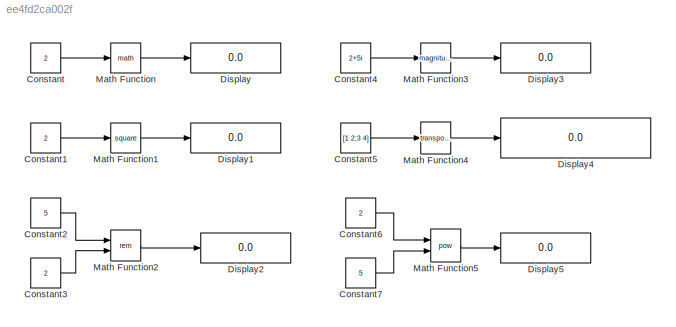
MODEL slx_ee4fd2ca002f
KIND model
CONFIG AbsTol = auto
CONFIG EnableMultiTasking = off
CONFIG FixedStep = auto
CONFIG MaxStep = auto
CONFIG MinStep = auto
CONFIG RelTol = 1e-3
CONFIG SampleTimeConstraint = Unconstrained
CONFIG Solver = VariableStepAuto
CONFIG SolverName = VariableStepAuto
CONFIG StartTime = 0.0
CONFIG StopTime = 10.0
BLOCK [Constant] Constant
  Value = 2
BLOCK [Constant] Constant1
  Value = 2
BLOCK [Constant] Constant2
  Value = 5
BLOCK [Constant] Constant3
  Value = 2
BLOCK [Constant] Constant4
  Value = 2+5i
BLOCK [Constant] Constant5
  Value = [1 2;3 4]
BLOCK [Constant] Constant6
  Value = 2
BLOCK [Constant] Constant7
  Value = 5
BLOCK [Display] Display
  Decimation = 1
  Ports = [1]
BLOCK [Display] Display1
  Decimation = 1
  Ports = [1]
BLOCK [Display] Display2
  Decimation = 1
  Ports = [1]
BLOCK [Display] Display3
  Decimation = 1
  Ports = [1]
BLOCK [Display] Display4
  Decimation = 1
  Ports = [1]
BLOCK [Display] Display5
  Decimation = 1
  Ports = [1]
BLOCK [Math] Math Function
  Ports = [1, 1]
BLOCK [Math] Math Function1
  Operator = square
  Ports = [1, 1]
BLOCK [Math] Math Function2
  Operator = rem
  Ports = [2, 1]
BLOCK [Math] Math Function3
  Operator = magnitude^2
  Ports = [1, 1]
BLOCK [Math] Math Function4
  Operator = transpose
  Ports = [1, 1]
BLOCK [Math] Math Function5
  Operator = pow
  Ports = [2, 1]
LINE Constant1:1 -> Math Function1:1
LINE Constant2:1 -> Math Function2:1
LINE Constant3:1 -> Math Function2:2
LINE Constant4:1 -> Math Function3:1
LINE Constant5:1 -> Math Function4:1
LINE Constant6:1 -> Math Function5:1
LINE Constant7:1 -> Math Function5:2
LINE Constant:1 -> Math Function:1
LINE Math Function1:1 -> Display1:1
LINE Math Function2:1 -> Display2:1
LINE Math Function3:1 -> Display3:1
LINE Math Function4:1 -> Display4:1
LINE Math Function5:1 -> Display5:1
LINE Math Function:1 -> Display:1
